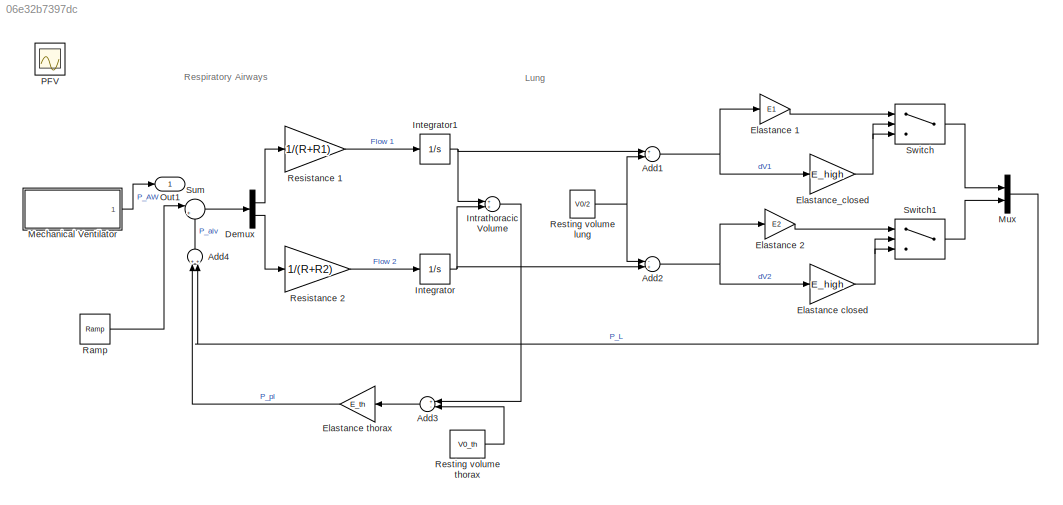
MODEL slx_06e32b7397dc
KIND model
CONFIG AbsTol = auto
CONFIG EnableMultiTasking = off
CONFIG FixedStep = auto
CONFIG MaxStep = auto
CONFIG MinStep = auto
CONFIG RelTol = 1e-3
CONFIG SampleTimeConstraint = Unconstrained
CONFIG Solver = VariableStepAuto
CONFIG SolverName = VariableStepAuto
CONFIG StartTime = 0.0
CONFIG StopTime = time
BLOCK [Sum] Add1
  InputSameDT = off
  Inputs = +-
  OutDataTypeStr = Inherit: Inherit via internal rule
  Ports = [2, 1]
  SaturateOnIntegerOverflow = off
BLOCK [Sum] Add2
  InputSameDT = off
  Inputs = -+
  OutDataTypeStr = Inherit: Inherit via internal rule
  Ports = [2, 1]
  SaturateOnIntegerOverflow = off
BLOCK [Sum] Add3
  InputSameDT = off
  Inputs = +-
  OutDataTypeStr = Inherit: Inherit via internal rule
  Ports = [2, 1]
  SaturateOnIntegerOverflow = off
BLOCK [Sum] Add4
  InputSameDT = off
  OutDataTypeStr = Inherit: Inherit via internal rule
  Ports = [2, 1]
  SaturateOnIntegerOverflow = off
BLOCK [Demux] Demux
  DisplayOption = bar
  Outputs = 2
  Ports = [1, 2]
BLOCK [Gain] Elastance 1
  Gain = E1
  OutDataTypeStr = Inherit: Inherit via internal rule
  ParamDataTypeStr = Inherit: Inherit via internal rule
  SaturateOnIntegerOverflow = off
BLOCK [Gain] Elastance 2 
  Gain = E2
  OutDataTypeStr = Inherit: Inherit via internal rule
  ParamDataTypeStr = Inherit: Inherit via internal rule
  SaturateOnIntegerOverflow = off
BLOCK [Gain] Elastance closed
  Gain = E_high
  OutDataTypeStr = Inherit: Inherit via internal rule
  ParamDataTypeStr = Inherit: Inherit via internal rule
  SaturateOnIntegerOverflow = off
BLOCK [Gain] Elastance thorax
  Gain = E_th
  OutDataTypeStr = Inherit: Inherit via internal rule
  ParamDataTypeStr = Inherit: Inherit via internal rule
  SaturateOnIntegerOverflow = off
BLOCK [Gain] Elastance_closed
  Gain = E_high
  OutDataTypeStr = Inherit: Inherit via internal rule
  ParamDataTypeStr = Inherit: Inherit via internal rule
  SaturateOnIntegerOverflow = off
BLOCK [Integrator] Integrator
  Ports = [1, 1]
BLOCK [Integrator] Integrator1
  Ports = [1, 1]
BLOCK [Sum] Intrathoracic Volume
  InputSameDT = off
  OutDataTypeStr = Inherit: Inherit via internal rule
  Ports = [2, 1]
  SaturateOnIntegerOverflow = off
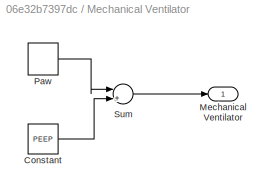
BLOCK [SubSystem] Mechanical Ventilator 
  Ports = [0, 1]
  RequestExecContextInheritance = off
BLOCK [Constant] Mechanical Ventilator /Constant
  SampleTime = 0.1
  Value = PEEP
BLOCK [Outport] Mechanical Ventilator /Mechanical Ventilator
  IconDisplay = Port number
  VectorParamsAs1DForOutWhenUnconnected = off
BLOCK [DiscretePulseGenerator] Mechanical Ventilator /Paw
  Amplitude = Pcontrol
  Period = breath
  PhaseDelay = 2
  Ports = [0, 1]
  PulseType = Time based
  PulseWidth = insptime
  SampleTime = 0.1
BLOCK [Sum] Mechanical Ventilator /Sum
  InputSameDT = off
  Inputs = |++
  OutDataTypeStr = Inherit: Inherit via internal rule
  Ports = [2, 1]
  SaturateOnIntegerOverflow = off
BLOCK [Mux] Mux
  DisplayOption = bar
  Inputs = 2
  Ports = [2, 1]
BLOCK [Outport] Out1
  IconDisplay = Port number
BLOCK [Scope] PFV
  Floating = off
  IOType = viewer
  NumInputPorts = 1
  Ports = []
  ScopeSpecificationString = Simulink.scopes.TimeScopeBlockCfg('CurrentConfiguration', extmgr.ConfigurationSet(extmgr.Configuration('Core','General UI',true,'FigureColor',[0 0 0]),extmgr.Configuration('Core','Source UI',true),extmgr.Configuration('Sources','WiredSimulink',true),extmgr.Configuration('Visuals','Time Domain',true,'SerializedDisplays',{struct('MinYLimReal','-110.13487','MaxYLimReal','45.57054','YLabelReal','','Mi...<+2842ch>
BLOCK [Reference] Ramp  REF=simulink/Sources/Ramp
  Ports = [0, 1]
  SourceBlock = simulink/Sources/Ramp
  SourceProductBaseCode = SL
  SourceProductName = Simulink
  SourceType = Ramp
BLOCK [Gain] Resistance 1
  Gain = 1/(R+R1)
  OutDataTypeStr = Inherit: Inherit via internal rule
  ParamDataTypeStr = Inherit: Inherit via internal rule
  SaturateOnIntegerOverflow = off
BLOCK [Gain] Resistance 2
  Gain = 1/(R+R2)
  OutDataTypeStr = Inherit: Inherit via internal rule
  ParamDataTypeStr = Inherit: Inherit via internal rule
  SaturateOnIntegerOverflow = off
BLOCK [Constant] Resting volume lung 
  Value = V0/2
BLOCK [Constant] Resting volume thorax
  Value = V0_th
BLOCK [Sum] Sum
  IconShape = round
  InputSameDT = off
  Inputs = |+-
  OutDataTypeStr = Inherit: Inherit via internal rule
  Ports = [2, 1]
  SaturateOnIntegerOverflow = off
BLOCK [Switch] Switch
  Criteria = u2 > Threshold
  InputSameDT = off
  SaturateOnIntegerOverflow = off
  Threshold = TOP1
BLOCK [Switch] Switch1
  Criteria = u2 > Threshold
  InputSameDT = off
  SaturateOnIntegerOverflow = off
  Threshold = TOP2
ANNOTATION (root): Thorax
ANNOTATION (root): Lung
ANNOTATION (root): Respiratory Airways
NET Add1:1 -> Elastance 1:1, Elastance_closed:1
NET Add2:1 -> Elastance 2 :1, Elastance closed:1
LINE Add3:1 -> Elastance thorax:1
LINE Add4:1 -> Sum:2
LINE Demux:1 -> Resistance 1:1
LINE Demux:2 -> Resistance 2:1
LINE Elastance 1:1 -> Switch:1
LINE Elastance 2 :1 -> Switch1:1
NET Elastance closed:1 -> Switch1:2, Switch1:3
LINE Elastance thorax:1 -> Add4:1
NET Elastance_closed:1 -> Switch:2, Switch:3
NET Integrator1:1 -> Add1:1, Intrathoracic Volume:1
NET Integrator:1 -> Add2:2, Intrathoracic Volume:2
LINE Intrathoracic Volume:1 -> Add3:1
LINE Mechanical Ventilator /Constant:1 -> Mechanical Ventilator /Sum:2
LINE Mechanical Ventilator /Paw:1 -> Mechanical Ventilator /Sum:1
LINE Mechanical Ventilator /Sum:1 -> Mechanical Ventilator /Mechanical Ventilator:1
LINE Mechanical Ventilator :1 -> Out1:1
LINE Mux:1 -> Add4:2
LINE Ramp:1 -> Sum:1
LINE Resistance 1:1 -> Integrator1:1
LINE Resistance 2:1 -> Integrator:1
NET Resting volume lung :1 -> Add1:2, Add2:1
LINE Resting volume thorax:1 -> Add3:2
LINE Sum:1 -> Demux:1
LINE Switch1:1 -> Mux:2
LINE Switch:1 -> Mux:1
note: NET lines group one-source signal fan-out (src -> all destinations, sorted); 1:1 wires keep LINE
